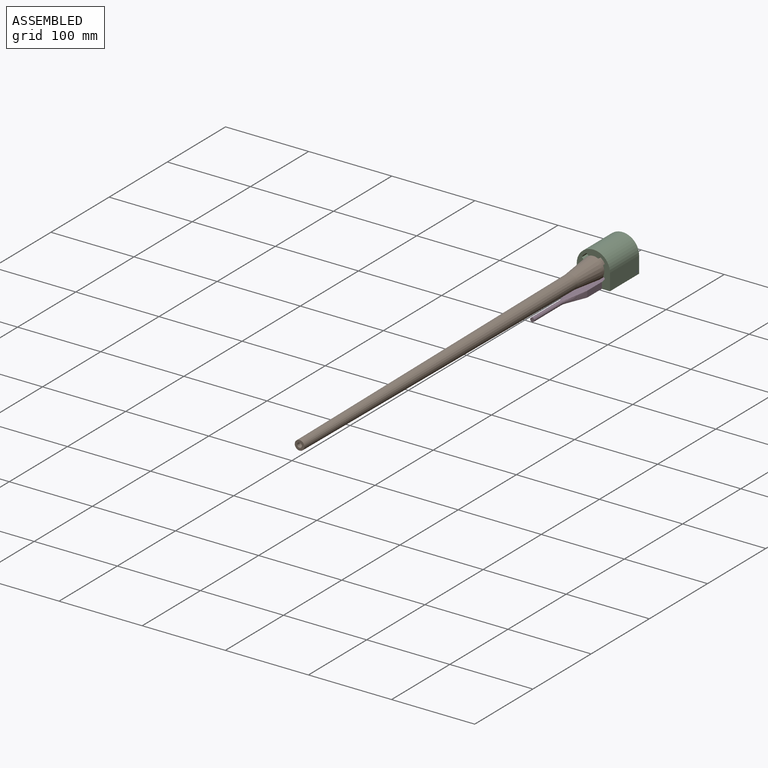
[diagram: assembled view]
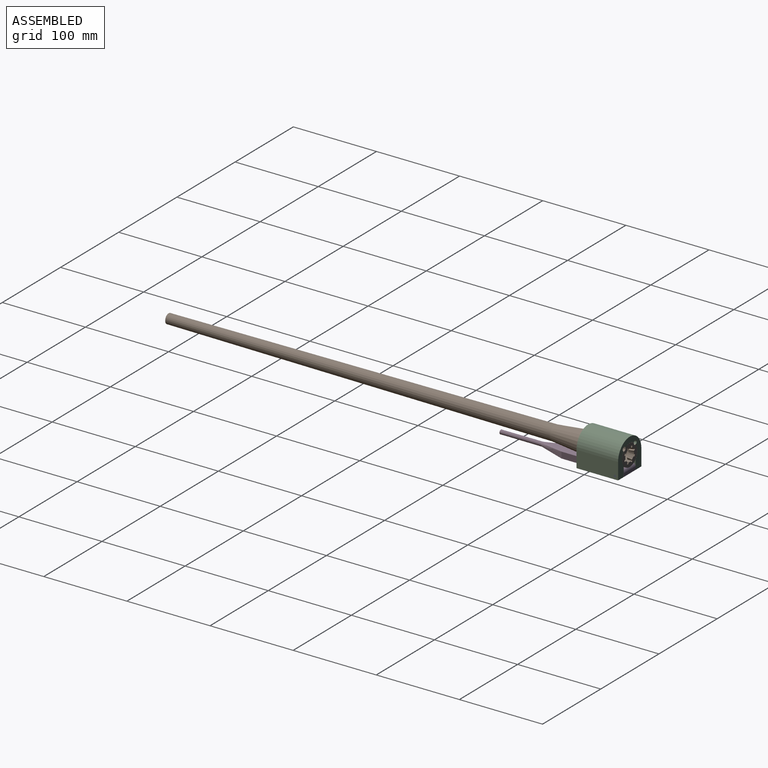
[diagram: assembled view, second angle]
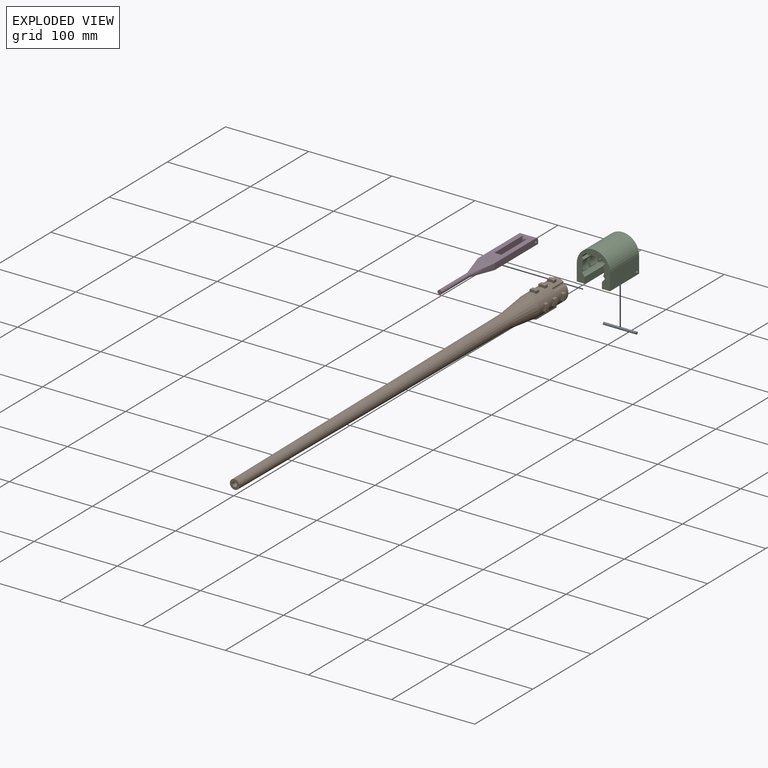
[diagram: exploded view]
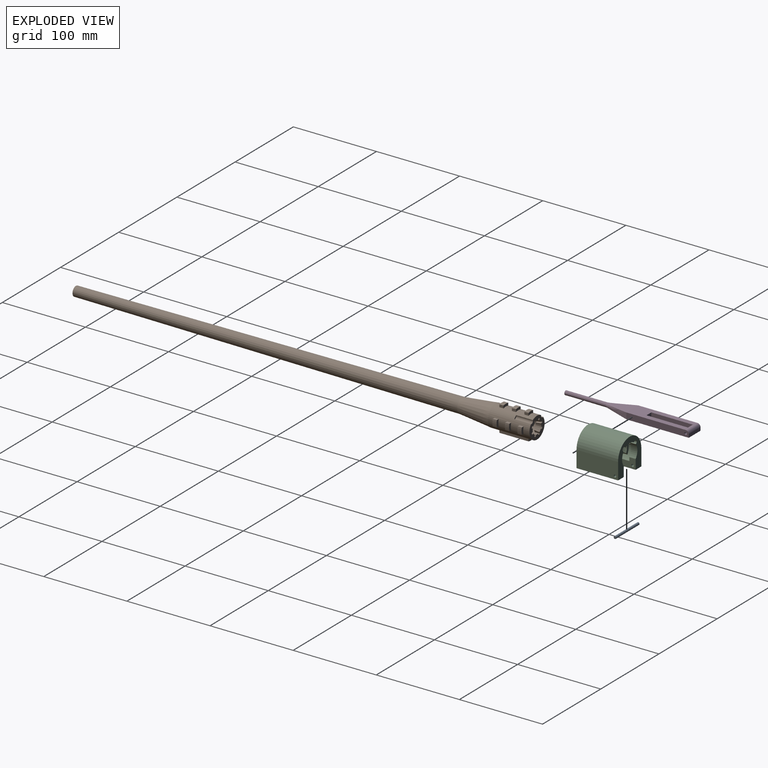
[diagram: exploded view, second angle]
ASSEMBLY  parts=4 mates=3
PART A: 3 faces, bbox 40x3x3 mm
  f0: cylinder r=1.5mm len=40mm, axis (-1,0,0), area 377mm2, adj f1,f2
  f1: plane 3x3mm, normal (1,0,0), area 7.1mm2, adj f0
  f2: plane 3x3mm, normal (-1,0,0), area 7.1mm2, adj f0
PART B: 99 faces, bbox 32x554.8x32 mm
  f0: cylinder r=13mm len=50mm, axis (0,1,0), area 3249.1mm2, adj f1,f2,f3,f4,f5,f6,f7,f8
  f1: plane 26x26mm, normal (0,1,0), area 307.7mm2, adj f0,f42,f45,f47,f49,f53,f54,f55
  f2: plane 5x3.12mm, normal (-1,0,0), area 15.6mm2, adj f0,f4,f5,f94
  f3: plane 5x3.12mm, normal (1,0,0), area 15.6mm2, adj f0,f4,f5,f94
  f4: plane 8x3.63mm, normal (0,1,0), area 24.3mm2, adj f0,f2,f3,f94
  f5: plane 8x3.63mm, normal (0,-1,0), area 24.3mm2, adj f0,f2,f3,f94
  f6: plane 5x3.12mm, normal (-1,0,0), area 15.6mm2, adj f0,f8,f9,f93
  f7: plane 5x3.12mm, normal (1,0,0), area 15.6mm2, adj f0,f8,f9,f93
  f8: plane 8x3.63mm, normal (0,1,0), area 24.3mm2, adj f0,f6,f7,f93
  f9: plane 8x3.63mm, normal (0,-1,0), area 24.3mm2, adj f0,f6,f7,f93
  f10: plane 5x3.12mm, normal (-1,0,0), area 15.6mm2, adj f0,f12,f13,f92
  f11: plane 5x3.12mm, normal (1,0,0), area 15.6mm2, adj f0,f12,f13,f92
  f12: plane 8x3.63mm, normal (0,1,0), area 24.3mm2, adj f0,f10,f11,f92
  f13: plane 8x3.63mm, normal (0,-1,0), area 24.3mm2, adj f0,f10,f11,f92
  f14: plane 5x3.12mm, normal (0,0,1), area 15.6mm2, adj f0,f16,f17,f91
  f15: plane 5x3.12mm, normal (0,0,-1), area 15.6mm2, adj f0,f16,f17,f91
  f16: plane 8x3.63mm, normal (0,1,0), area 24.3mm2, adj f0,f14,f15,f91
  f17: plane 8x3.63mm, normal (0,-1,0), area 24.3mm2, adj f0,f14,f15,f91
  f18: plane 5x3.12mm, normal (0,0,1), area 15.6mm2, adj f0,f20,f21,f90
  f19: plane 5x3.12mm, normal (0,0,-1), area 15.6mm2, adj f0,f20,f21,f90
  f20: plane 8x3.63mm, normal (0,1,0), area 24.3mm2, adj f0,f18,f19,f90
  f21: plane 8x3.63mm, normal (0,-1,0), area 24.3mm2, adj f0,f18,f19,f90
  f22: plane 5x3.12mm, normal (0,0,1), area 15.6mm2, adj f0,f24,f25,f89
  f23: plane 5x3.12mm, normal (0,0,-1), area 15.6mm2, adj f0,f24,f25,f89
  f24: plane 8x3.63mm, normal (0,1,0), area 24.3mm2, adj f0,f22,f23,f89
  f25: plane 8x3.63mm, normal (0,-1,0), area 24.3mm2, adj f0,f22,f23,f89
  f26: plane 35x3.12mm, normal (1,0,0), area 109.3mm2, adj f0,f28,f29,f88
  f27: plane 35x3.12mm, normal (-1,0,0), area 109.3mm2, adj f0,f28,f29,f88
  f28: plane 8x3.63mm, normal (0,-1,0), area 24.3mm2, adj f0,f26,f27,f88
  f29: plane 8x3.63mm, normal (0,1,0), area 24.3mm2, adj f0,f26,f27,f88
  f30: plane 5x3.12mm, normal (0,0,-1), area 15.6mm2, adj f0,f32,f33,f87
  f31: plane 5x3.12mm, normal (0,0,1), area 15.6mm2, adj f0,f32,f33,f87
  f32: plane 8x3.63mm, normal (0,1,0), area 24.3mm2, adj f0,f30,f31,f87
  f33: plane 8x3.63mm, normal (0,-1,0), area 24.3mm2, adj f0,f30,f31,f87
  f34: plane 5x3.12mm, normal (0,0,-1), area 15.6mm2, adj f0,f36,f37,f86
  f35: plane 5x3.12mm, normal (0,0,1), area 15.6mm2, adj f0,f36,f37,f86
  f36: plane 8x3.63mm, normal (0,1,0), area 24.3mm2, adj f0,f34,f35,f86
  f37: plane 8x3.63mm, normal (0,-1,0), area 24.3mm2, adj f0,f34,f35,f86
  f38: plane 5x3.12mm, normal (0,0,-1), area 15.6mm2, adj f0,f40,f41,f85
  f39: plane 5x3.12mm, normal (0,0,1), area 15.6mm2, adj f0,f40,f41,f85
  f40: plane 8x3.63mm, normal (0,1,0), area 24.3mm2, adj f0,f38,f39,f85
  f41: plane 8x3.63mm, normal (0,-1,0), area 24.3mm2, adj f0,f38,f39,f85
  f42: cone r=7.5mm half-angle=9.5deg, axis (0,1,0), area 20mm2, adj f1,f43,f76,f83
  f43: plane 4.83x4.83mm, normal (0,-1,0), area 12.2mm2, adj f42,f56,f76,f83
  f44: plane 4.83x4.83mm, normal (0,-1,0), area 12.2mm2, adj f45,f56,f70,f81
  f45: cone r=7.5mm half-angle=9.5deg, axis (0,1,0), area 20mm2, adj f1,f44,f70,f81
  f46: plane 4.83x4.83mm, normal (0,-1,0), area 12.2mm2, adj f47,f56,f72,f79
  f47: cone r=7.5mm half-angle=9.5deg, axis (0,1,0), area 20mm2, adj f1,f46,f72,f79
  f48: plane 4.83x4.83mm, normal (0,-1,0), area 12.2mm2, adj f49,f56,f74,f77
  f49: cone r=7.5mm half-angle=9.5deg, axis (0,1,0), area 20mm2, adj f1,f48,f74,f77
  f50: plane 5.19x3.16mm, normal (0,-1,0), area 12.2mm2, adj f53,f56,f75,f82
  f51: plane 5.19x3.16mm, normal (0,-1,0), area 12.2mm2, adj f55,f56,f71,f78
  f52: plane 5.19x3.16mm, normal (0,-1,0), area 12.2mm2, adj f56,f58,f69,f80
  f53: cone r=7.5mm half-angle=9.5deg, axis (0,1,0), area 20mm2, adj f1,f50,f75,f82
  f54: cone r=7.5mm half-angle=9.5deg, axis (0,1,0), area 20mm2, adj f1,f57,f73,f84
  f55: cone r=7.5mm half-angle=9.5deg, axis (0,1,0), area 20mm2, adj f1,f51,f71,f78
  f56: cylinder r=9.5mm len=19mm, axis (0,1,0), area 464mm2, adj f1,f43,f44,f46,f48,f50,f51,f52
  f57: plane 5.19x3.16mm, normal (0,-1,0), area 12.2mm2, adj f54,f56,f73,f84
  f58: cone r=7.5mm half-angle=9.5deg, axis (0,1,0), area 20mm2, adj f1,f52,f69,f80
  f59: cone r=8.78mm half-angle=6deg, axis (0,1,0), area 2752.1mm2, adj f0,f60
  f60: cone r=5.78mm half-angle=0.4deg, axis (0,1,0), area 21261.1mm2, adj f59,f61
  f61: plane 11.56x11.56mm, normal (0,-1,0), area 80.7mm2, adj f60,f62
  f62: cylinder r=2.78mm len=500mm, axis (0,1,0), area 8733.6mm2, adj f61,f63
  f63: plane 7.01x7.01mm, normal (0,1,0), area 14.3mm2, adj f62,f64
  f64: cylinder r=3.5mm len=7.01mm, axis (0,1,0), area 113.4mm2, adj f63,f65
  f65: cone r=4.79mm half-angle=23deg, axis (0,1,0), area 85.8mm2, adj f64,f66
  f66: cylinder r=4.79mm len=33.39mm, axis (0,1,0), area 1004.9mm2, adj f65,f67
  f67: cone r=5.65mm half-angle=35deg, axis (0,1,0), area 49.3mm2, adj f66,f68
  f68: plane 19x19mm, normal (0,1,0), area 183.2mm2, adj f56,f67
  f69: plane 6.01x2.81mm, normal (0.92,0,0.38), area 15.1mm2, adj f1,f52,f56,f58
  f70: plane 6.01x2.81mm, normal (-0.92,0,-0.38), area 15.1mm2, adj f1,f44,f45,f56
  f71: plane 6.01x2.81mm, normal (0.38,0,-0.92), area 15.1mm2, adj f1,f51,f55,f56
  f72: plane 6.01x2.81mm, normal (-0.38,0,0.92), area 15.1mm2, adj f1,f46,f47,f56
  f73: plane 6.01x2.81mm, normal (-0.92,0,-0.38), area 15.1mm2, adj f1,f54,f56,f57
  f74: plane 6.01x2.81mm, normal (0.92,0,0.38), area 15.1mm2, adj f1,f48,f49,f56
  f75: plane 6.01x2.81mm, normal (-0.38,0,0.92), area 15.1mm2, adj f1,f50,f53,f56
  f76: plane 6.01x2.81mm, normal (0.38,0,-0.92), area 15.1mm2, adj f1,f42,f43,f56
  f77: plane 6.01x2.81mm, normal (-0.38,0,-0.92), area 15.1mm2, adj f1,f48,f49,f56
  f78: plane 6.01x2.81mm, normal (0.38,0,0.92), area 15.1mm2, adj f1,f51,f55,f56
  f79: plane 6.01x2.81mm, normal (0.92,0,-0.38), area 15.1mm2, adj f1,f46,f47,f56
  f80: plane 6.01x2.81mm, normal (-0.92,0,0.38), area 15.1mm2, adj f1,f52,f56,f58
  f81: plane 6.01x2.81mm, normal (0.38,0,0.92), area 15.1mm2, adj f1,f44,f45,f56
  f82: plane 6.01x2.81mm, normal (-0.38,0,-0.92), area 15.1mm2, adj f1,f50,f53,f56
  f83: plane 6.01x2.81mm, normal (-0.92,0,0.38), area 15.1mm2, adj f1,f42,f43,f56
  f84: plane 6.01x2.81mm, normal (0.92,0,-0.38), area 15.1mm2, adj f1,f54,f56,f57
  f85: cylinder r=16mm len=8mm, axis (0,1,0), area 40.4mm2, adj f38,f39,f40,f41
  f86: cylinder r=16mm len=8mm, axis (0,1,0), area 40.4mm2, adj f34,f35,f36,f37
  f87: cylinder r=16mm len=8mm, axis (0,1,0), area 40.4mm2, adj f30,f31,f32,f33
  f88: cylinder r=16mm len=35mm, axis (0,1,0), area 283mm2, adj f26,f27,f28,f29
  f89: cylinder r=16mm len=8mm, axis (0,1,0), area 40.4mm2, adj f22,f23,f24,f25
  f90: cylinder r=16mm len=8mm, axis (0,1,0), area 40.4mm2, adj f18,f19,f20,f21
  f91: cylinder r=16mm len=8mm, axis (0,1,0), area 40.4mm2, adj f14,f15,f16,f17
  f92: cylinder r=16mm len=8mm, axis (0,1,0), area 40.4mm2, adj f10,f11,f12,f13
  f93: cylinder r=16mm len=8mm, axis (0,1,0), area 40.4mm2, adj f6,f7,f8,f9
  f94: cylinder r=16mm len=8mm, axis (0,1,0), area 40.4mm2, adj f2,f3,f4,f5
  f95: cylinder r=2.5mm len=20mm, axis (0,1,0), area 116.1mm2, adj f0,f1,f96
  f96: plane 3.48x3.36mm, normal (0,1,0), area 5.6mm2, adj f0,f95
  f97: cylinder r=2.5mm len=20mm, axis (0,1,0), area 116.1mm2, adj f0,f1,f98
  f98: plane 3.48x3.36mm, normal (0,1,0), area 5.6mm2, adj f0,f97
PART C: 72 faces, bbox 40x50x40 mm
  f0: cylinder r=13.1mm len=50mm, axis (0,1,0), area 477.3mm2, adj f2,f3,f4,f8,f12,f15,f27,f29
  f1: cylinder r=13.1mm len=50mm, axis (0,1,0), area 493.2mm2, adj f2,f10,f13,f16,f28,f29,f30,f31
  f2: plane 40x40mm, normal (0,1,0), area 690.8mm2, adj f0,f1,f5,f17,f18,f19,f20,f21
  f3: plane 4.41x2.86mm, normal (0,-1,0), area 4.6mm2, adj f0,f9,f27,f66,f67
  f4: plane 14.41x5.06mm, normal (0,-1,0), area 39mm2, adj f0,f7,f15,f62,f64
  f5: cylinder r=16.1mm len=50mm, axis (0,1,0), area 434mm2, adj f2,f6,f11,f14,f24,f29,f35,f36
  f6: plane 5x3.13mm, normal (0,0,-1), area 15.6mm2, adj f5,f25,f54,f61
  f7: cylinder r=16.1mm len=42.5mm, axis (0,1,0), area 516mm2, adj f4,f8,f12,f15,f26,f29,f34,f41
  f8: plane 5x3.13mm, normal (-1,0,0), area 15.6mm2, adj f0,f7,f50,f58
  f9: cylinder r=16.1mm len=42.5mm, axis (0,1,0), area 516mm2, adj f3,f10,f13,f16,f27,f29,f33,f38
  f10: plane 5x3.13mm, normal (0,0,1), area 15.6mm2, adj f1,f9,f47,f56
  f11: plane 5x3.13mm, normal (0,0,-1), area 15.6mm2, adj f5,f25,f45,f55
  f12: plane 5x3.13mm, normal (-1,0,0), area 15.6mm2, adj f0,f7,f41,f51
  f13: plane 5x3.13mm, normal (0,0,1), area 15.6mm2, adj f1,f9,f38,f48
  f14: plane 5x3.13mm, normal (0,0,-1), area 15.6mm2, adj f5,f25,f35,f46
  f15: plane 5x3.13mm, normal (-1,0,0), area 15.6mm2, adj f0,f4,f7,f42
  f16: plane 5x3.13mm, normal (0,0,1), area 15.6mm2, adj f1,f9,f33,f39
  f17: cylinder r=16.1mm len=50mm, axis (0,1,0), area 244.3mm2, adj f2,f18,f28,f29,f31,f32
  f18: plane 50x7.54mm, normal (-1,0,0), area 370.1mm2, adj f2,f17,f19,f29,f71
  f19: plane 50x9.8mm, normal (0,0,-1), area 490mm2, adj f2,f18,f20,f29
  f20: plane 50x20mm, normal (1,0,0), area 992.9mm2, adj f2,f19,f21,f29,f71
  f21: cylinder r=20mm len=50mm, axis (0,1,0), area 3141.6mm2, adj f2,f20,f22,f29
  f22: plane 50x20mm, normal (-1,0,0), area 992.9mm2, adj f2,f21,f23,f29,f70
  f23: plane 50x9.8mm, normal (0,0,-1), area 490mm2, adj f2,f22,f24,f29
  f24: plane 50x7.54mm, normal (1,0,0), area 370.1mm2, adj f2,f5,f23,f29,f70
  f25: cylinder r=13.1mm len=50mm, axis (0,1,0), area 493.2mm2, adj f2,f6,f11,f14,f26,f29,f34,f35
  f26: plane 42.5x2.21mm, normal (0.71,0,0.71), area 132.9mm2, adj f7,f25,f29,f34
  f27: plane 42.5x2.21mm, normal (0.71,0,-0.71), area 132.9mm2, adj f0,f3,f9,f29
  f28: plane 42.5x2.21mm, normal (-0.71,0,-0.71), area 132.9mm2, adj f1,f17,f29,f31
  f29: plane 40x40mm, normal (0,-1,0), area 642.5mm2, adj f0,f1,f5,f7,f9,f17,f18,f19
  f30: plane 7.5x4.22mm, normal (-1,0,0), area 31.7mm2, adj f1,f2,f31,f32
  f31: plane 6.54x3.71mm, normal (0,-1,0), area 12.9mm2, adj f1,f17,f28,f30,f32
  f32: plane 7.5x0.02mm, normal (0,0,-1), area 0.1mm2, adj f2,f17,f30,f31
  f33: plane 15.03x5.43mm, normal (0,-1,0), area 41.3mm2, adj f1,f9,f16,f67,f68
  f34: plane 5.03x3.24mm, normal (0,-1,0), area 6.9mm2, adj f7,f25,f26,f63,f64
  f35: plane 16.54x5.9mm, normal (0,-1,0), area 47.3mm2, adj f5,f14,f25,f36,f37
  f36: plane 7.5x0.02mm, normal (0,0,-1), area 0.1mm2, adj f2,f5,f35,f37
  f37: plane 7.5x4.22mm, normal (1,0,0), area 31.7mm2, adj f2,f25,f35,f36
  f38: plane 12.21x4.4mm, normal (0,-1,0), area 34.4mm2, adj f1,f9,f13,f40
  f39: plane 12.21x4.4mm, normal (0,1,0), area 34.4mm2, adj f1,f9,f16,f40
  f40: plane 10x2.21mm, normal (-0.71,0,0.71), area 31.3mm2, adj f1,f9,f38,f39
  f41: plane 12.21x4.4mm, normal (0,-1,0), area 34.4mm2, adj f0,f7,f12,f43
  f42: plane 12.21x4.4mm, normal (0,1,0), area 34.4mm2, adj f0,f7,f15,f43
  f43: plane 10x2.21mm, normal (-0.71,0,-0.71), area 31.3mm2, adj f0,f7,f41,f42
  f44: plane 10x2.21mm, normal (0.71,0,-0.71), area 31.3mm2, adj f5,f25,f45,f46
  f45: plane 12.21x4.4mm, normal (0,-1,0), area 34.4mm2, adj f5,f11,f25,f44
  f46: plane 12.21x4.4mm, normal (0,1,0), area 34.4mm2, adj f5,f14,f25,f44
  f47: plane 12.21x4.4mm, normal (0,-1,0), area 34.4mm2, adj f1,f9,f10,f49
  f48: plane 12.21x4.4mm, normal (0,1,0), area 34.4mm2, adj f1,f9,f13,f49
  f49: plane 10x2.21mm, normal (-0.71,0,0.71), area 31.3mm2, adj f1,f9,f47,f48
  f50: plane 12.21x4.4mm, normal (0,-1,0), area 34.4mm2, adj f0,f7,f8,f52
  f51: plane 12.21x4.4mm, normal (0,1,0), area 34.4mm2, adj f0,f7,f12,f52
  f52: plane 10x2.21mm, normal (-0.71,0,-0.71), area 31.3mm2, adj f0,f7,f50,f51
  f53: plane 10x2.21mm, normal (0.71,0,-0.71), area 31.3mm2, adj f5,f25,f54,f55
  f54: plane 12.21x4.4mm, normal (0,-1,0), area 34.4mm2, adj f5,f6,f25,f53
  f55: plane 12.21x4.4mm, normal (0,1,0), area 34.4mm2, adj f5,f11,f25,f53
  f56: plane 12.21x4.4mm, normal (0,1,0), area 34.4mm2, adj f1,f9,f10,f57
  f57: plane 7.5x2.21mm, normal (-0.71,0,0.71), area 23.5mm2, adj f1,f9,f29,f56
  f58: plane 12.21x4.4mm, normal (0,1,0), area 34.4mm2, adj f0,f7,f8,f59
  f59: plane 7.5x2.21mm, normal (-0.71,0,-0.71), area 23.5mm2, adj f0,f7,f29,f58
  f60: plane 7.5x2.21mm, normal (0.71,0,-0.71), area 23.5mm2, adj f5,f25,f29,f61
  f61: plane 12.21x4.4mm, normal (0,1,0), area 34.4mm2, adj f5,f6,f25,f60
  f62: plane 7.5x0.68mm, normal (-0.72,0,-0.69), area 7mm2, adj f0,f2,f4,f64
  f63: plane 7.5x0.68mm, normal (0.72,0,0.69), area 7mm2, adj f2,f25,f34,f64
  f64: cylinder r=2.5mm len=20mm, axis (0,1,0), area 85.7mm2, adj f2,f4,f7,f34,f62,f63,f65
  f65: plane 1.51x1.43mm, normal (0,1,0), area 0.3mm2, adj f7,f64
  f66: plane 7.5x0.68mm, normal (0.72,0,-0.69), area 7mm2, adj f0,f2,f3,f67
  f67: cylinder r=2.5mm len=20mm, axis (0,1,0), area 85.7mm2, adj f2,f3,f9,f33,f66,f68,f69
  f68: plane 7.5x0.68mm, normal (-0.72,0,0.69), area 7mm2, adj f1,f2,f33,f67
  f69: plane 1.51x1.43mm, normal (0,1,0), area 0.3mm2, adj f9,f67
  f70: cylinder r=1.5mm len=9.8mm, axis (-1,0,0), area 92.4mm2, adj f22,f24
  f71: cylinder r=1.5mm len=9.8mm, axis (-1,0,0), area 92.4mm2, adj f18,f20
PART D: 20 faces, bbox 20.2x155x7.5 mm
  f0: plane 51.25x7.5mm, normal (1,0,0), area 359.3mm2, adj f1,f3,f4,f6,f10
  f1: plane 8.2x3.75mm, normal (0,-1,0), area 30.8mm2, adj f0,f3,f6,f9
  f2: plane 20.2x3.75mm, normal (0,1,0), area 75.7mm2, adj f3,f6,f7,f8
  f3: cylinder r=3.75mm len=20.2mm, axis (-1,0,0), area 167.3mm2, adj f0,f1,f2,f4,f7,f8,f9
  f4: plane 71.25x20.2mm, normal (0,0,1), area 1019mm2, adj f0,f3,f7,f8,f9,f10,f11
  f5: cylinder r=1.5mm len=20.2mm, axis (-1,0,0), area 190.4mm2, adj f7,f8
  f6: plane 75x20.2mm, normal (0,0,-1), area 1125.5mm2, adj f0,f1,f2,f7,f8,f9,f10,f13
  f7: plane 75x7.5mm, normal (1,0,0), area 552.4mm2, adj f2,f3,f4,f5,f6,f14
  f8: plane 75x7.5mm, normal (-1,0,0), area 552.4mm2, adj f2,f3,f4,f5,f6,f12
  f9: plane 51.25x7.5mm, normal (-1,0,0), area 359.3mm2, adj f1,f3,f4,f6,f10
  f10: plane 8.2x7.5mm, normal (0,1,0), area 61.5mm2, adj f0,f4,f6,f9
  f11: bspline ~30x20.2mm, area 359mm2, adj f4,f12,f14,f15
  f12: bspline ~30x8.33mm, area 174.4mm2, adj f8,f11,f13,f16
  f13: bspline ~30x20.2mm, area 359mm2, adj f6,f12,f14,f17
  f14: bspline ~30x8.33mm, area 174.4mm2, adj f7,f11,f13,f18
  f15: extruded ~50x3.54mm, area 196.4mm2, adj f11,f16,f18,f19
  f16: extruded ~50x3.54mm, area 196.4mm2, adj f12,f15,f17,f19
  f17: extruded ~50x3.54mm, area 196.4mm2, adj f13,f16,f18,f19
  f18: extruded ~50x3.54mm, area 196.4mm2, adj f14,f15,f17,f19
  f19: plane 5x5mm, normal (0,-1,0), area 19.6mm2, adj f15,f16,f17,f18
PLACE A t=(-19.87,21.21,-16.4)mm
PLACE B rot(axis=(1,0,0),0deg) t=(0.13,24.96,-0.15)mm
PLACE C t=(0.13,24.96,-0.15)mm fixed
PLACE D rot(axis=(-1,0,0),0deg) t=(0.13,21.21,-16.4)mm
MATE fastened A.f0 <-> C.f70  axis (-1,0,0) through (-19.87,21.21,-16.4)mm
MATE cylindrical B.f0 <-> C.f0  axis (0,1,0) through (0.13,24.96,-0.15)mm
MATE revolute A.f0 <-> D.f3  axis (-1,0,0) through (0.13,21.21,-16.4)mm
